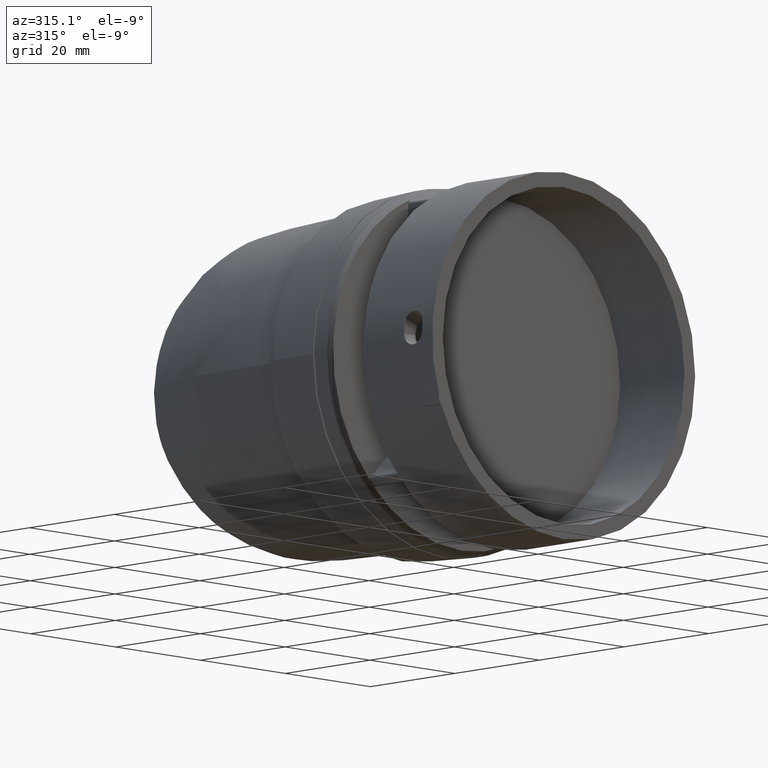
[diagram: clean part render]
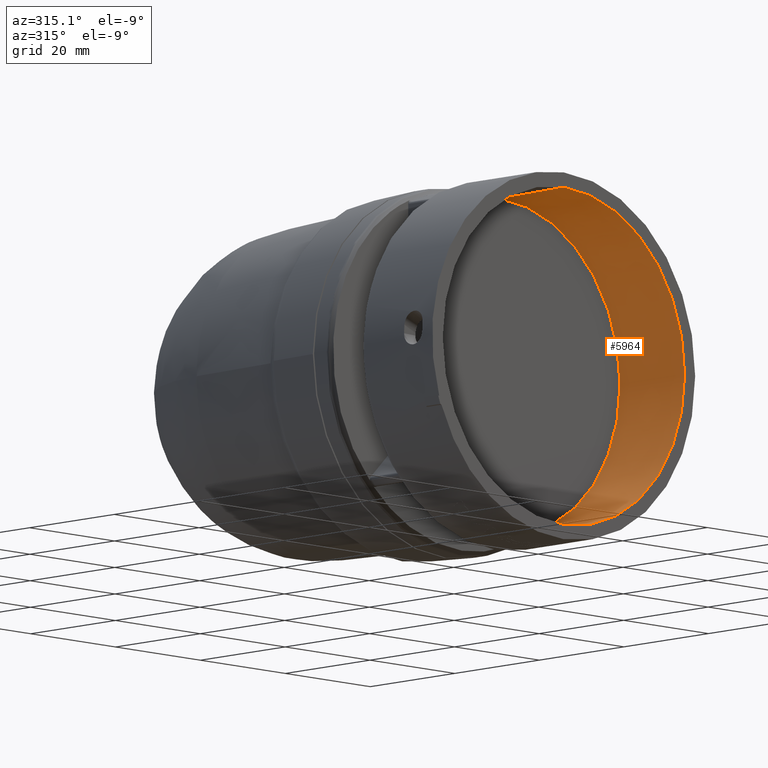
[diagram: same view with one face highlighted and labeled with its STEP entity id]
A machine part, auxiliary view. The second image highlights one B-rep face of the part: STEP entity #5964.
In plain terms, the highlighted conical surface has half-angle 1 deg.
Its self-contained STEP definition (entity closure, byte-faithful):
#315 = CIRCLE ( 'NONE', #504, 1.122047244094487750 ) ;
#340 = EDGE_LOOP ( 'NONE', ( #2422, #5132, #11170, #3315 ) ) ;
#504 = AXIS2_PLACEMENT_3D ( 'NONE', #9464, #2679, #6545 ) ;
#865 = CARTESIAN_POINT ( 'NONE',  ( 0.0000000000000000000, -0.4330708661417305150, -3.594536833768806057E-17 ) ) ;
#1203 = DIRECTION ( 'NONE',  ( 0.0000000000000000000, -1.217349807703021130E-16, -1.000000000000000000 ) ) ;
#1418 = VERTEX_POINT ( 'NONE', #8422 ) ;
#1704 = CARTESIAN_POINT ( 'NONE',  ( 0.0000000000000000000, -1.023622047244000077, -1.122047244094487750 ) ) ;
#2317 = LINE ( 'NONE', #2496, #3430 ) ;
#2422 = ORIENTED_EDGE ( 'NONE', *, *, #11812, .F. ) ;
#2496 = CARTESIAN_POINT ( 'NONE',  ( 0.0000000000000000000, -1.023622047244099775, -1.122047244094489526 ) ) ;
#2679 = DIRECTION ( 'NONE',  ( -0.0000000000000000000, 1.000000000000000000, -6.086749038515105649E-17 ) ) ;
#2822 = DIRECTION ( 'NONE',  ( 0.0000000000000000000, -6.143185725730221442E-17, -1.000000000000000000 ) ) ;
#3159 = CARTESIAN_POINT ( 'NONE',  ( 1.374111565972425803E-16, -1.023622047244099553, 1.122047244094489526 ) ) ;
#3315 = ORIENTED_EDGE ( 'NONE', *, *, #7514, .F. ) ;
#3430 = VECTOR ( 'NONE', #8086, 39.37007874015748143 ) ;
#3619 = AXIS2_PLACEMENT_3D ( 'NONE', #10013, #7135, #1203 ) ;
#4734 = DIRECTION ( 'NONE',  ( 0.0000000000000000000, -1.000000000000000000, 6.086749038515105649E-17 ) ) ;
#4927 = LINE ( 'NONE', #3159, #9387 ) ;
#4939 = AXIS2_PLACEMENT_3D ( 'NONE', #865, #4734, #2822 ) ;
#5132 = ORIENTED_EDGE ( 'NONE', *, *, #11680, .F. ) ;
#5186 = EDGE_CURVE ( 'NONE', #9331, #8246, #2317, .T. ) ;
#5541 = CIRCLE ( 'NONE', #4939, 1.111739134884912161 ) ;
#5964 = ADVANCED_FACE ( 'NONE', ( #11959 ), #7455, .F. ) ;
#6013 = CARTESIAN_POINT ( 'NONE',  ( 1.367799669498039395E-16, -0.4330708661417304040, 1.111739134884912161 ) ) ;
#6545 = DIRECTION ( 'NONE',  ( 0.0000000000000000000, 0.0000000000000000000, -1.000000000000000000 ) ) ;
#7135 = DIRECTION ( 'NONE',  ( 0.0000000000000000000, -1.000000000000000000, 6.086749038515105649E-17 ) ) ;
#7455 = CONICAL_SURFACE ( 'NONE', #3619, 1.122047244094489526, 0.01745329251994341691 ) ;
#7514 = EDGE_CURVE ( 'NONE', #1418, #8246, #315, .T. ) ;
#8086 = DIRECTION ( 'NONE',  ( 0.0000000000000000000, -0.9998476951563912696, -0.01745240643728357063 ) ) ;
#8246 = VERTEX_POINT ( 'NONE', #1704 ) ;
#8422 = CARTESIAN_POINT ( 'NONE',  ( 1.374111565972423584E-16, -1.023622047244000077, 1.122047244094487750 ) ) ;
#8741 = VERTEX_POINT ( 'NONE', #6013 ) ;
#8781 = DIRECTION ( 'NONE',  ( 2.137303368083806334E-18, -0.9998476951563912696, 0.01745240643728369553 ) ) ;
#9331 = VERTEX_POINT ( 'NONE', #11589 ) ;
#9387 = VECTOR ( 'NONE', #8781, 39.37007874015748143 ) ;
#9464 = CARTESIAN_POINT ( 'NONE',  ( 0.0000000000000000000, -1.023622047244000077, -6.061146385691543874E-30 ) ) ;
#10013 = CARTESIAN_POINT ( 'NONE',  ( 0.0000000000000000000, -1.023622047244099553, 0.0000000000000000000 ) ) ;
#11170 = ORIENTED_EDGE ( 'NONE', *, *, #5186, .T. ) ;
#11589 = CARTESIAN_POINT ( 'NONE',  ( 0.0000000000000000000, -0.4330708661417305705, -1.111739134884912161 ) ) ;
#11680 = EDGE_CURVE ( 'NONE', #9331, #8741, #5541, .T. ) ;
#11812 = EDGE_CURVE ( 'NONE', #8741, #1418, #4927, .T. ) ;
#11959 = FACE_OUTER_BOUND ( 'NONE', #340, .T. ) ;